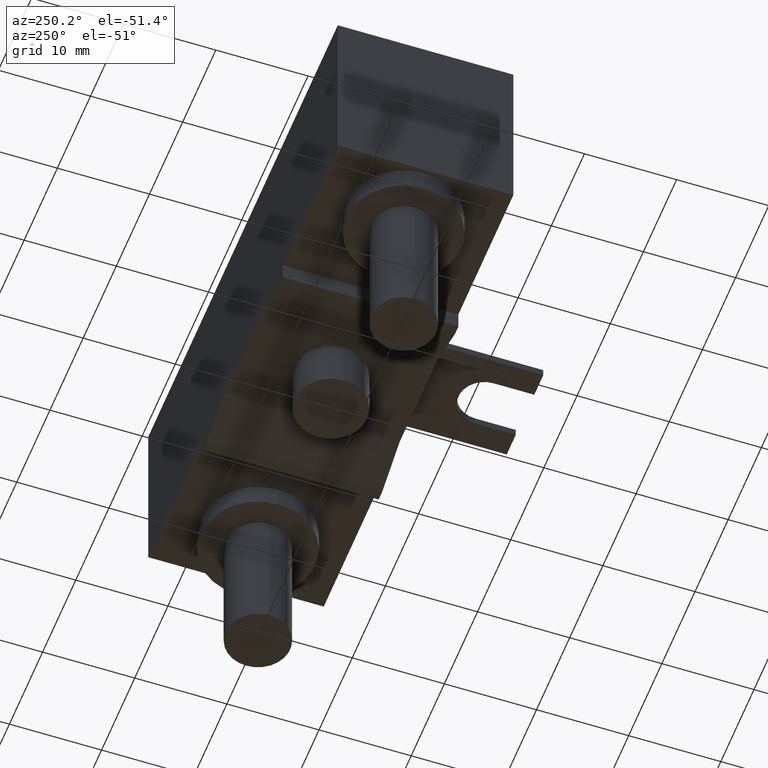
[diagram: clean part render]
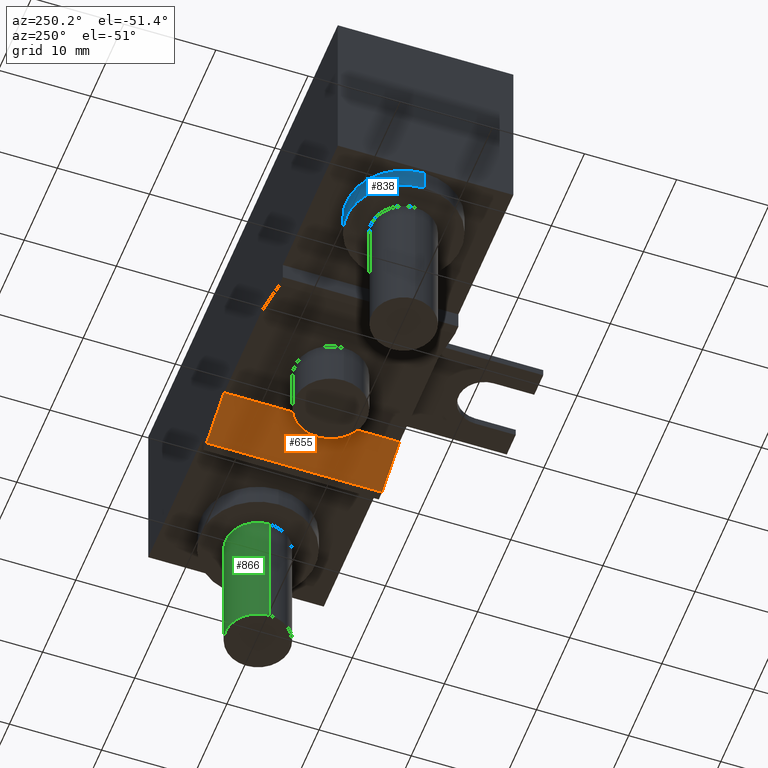
[diagram: same view with three faces highlighted in distinct colors, each labeled with its STEP entity id]
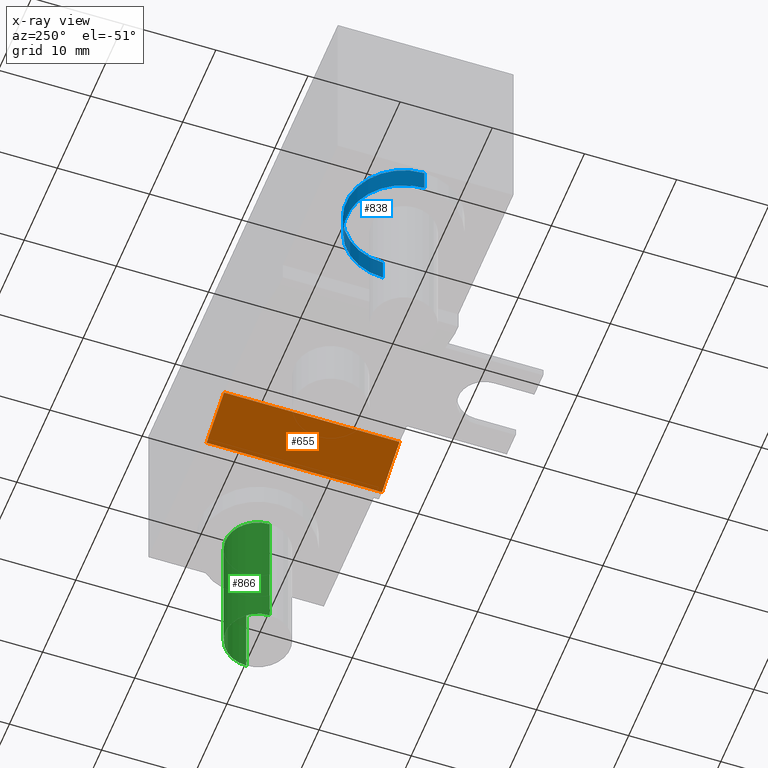
[diagram: x-ray of the same camera — body ghosted, the three highlighted faces saturated]
A machine part, auxiliary view with three faces highlighted in distinct colors.
The next image is the same camera in x-ray (body ghosted, the three faces saturated) — at least one of them is partly hidden behind the body in this view.
Their STEP definitions:

[orange] entity #655 — the highlighted planar face has unit normal (-0.3539, 0, -0.9353).
#25=DIRECTION('',(-9.352704256096E-1,0.E0,3.539339358977E-1));
#26=VECTOR('',#25,5.650772071142E0);
#27=CARTESIAN_POINT('',(1.1E1,0.E0,-1.185E1));
#28=LINE('',#27,#26);
#95=DIRECTION('',(0.E0,1.E0,0.E0));
#96=VECTOR('',#95,1.905E1);
#97=CARTESIAN_POINT('',(5.715E0,0.E0,-9.85E0));
#98=LINE('',#97,#96);
#109=DIRECTION('',(0.E0,1.E0,0.E0));
#110=VECTOR('',#109,1.905E1);
#111=CARTESIAN_POINT('',(1.1E1,0.E0,-1.185E1));
#112=LINE('',#111,#110);
#167=DIRECTION('',(-9.352704256096E-1,0.E0,3.539339358977E-1));
#168=VECTOR('',#167,5.650772071142E0);
#169=CARTESIAN_POINT('',(1.1E1,1.905E1,-1.185E1));
#170=LINE('',#169,#168);
#407=CARTESIAN_POINT('',(1.1E1,0.E0,-1.185E1));
#408=VERTEX_POINT('',#407);
#409=CARTESIAN_POINT('',(5.715E0,0.E0,-9.85E0));
#410=VERTEX_POINT('',#409);
#421=CARTESIAN_POINT('',(1.1E1,1.905E1,-1.185E1));
#422=VERTEX_POINT('',#421);
#423=CARTESIAN_POINT('',(5.715E0,1.905E1,-9.85E0));
#424=VERTEX_POINT('',#423);
#642=CARTESIAN_POINT('',(1.1E1,0.E0,-1.185E1));
#643=DIRECTION('',(-3.539339358977E-1,0.E0,-9.352704256096E-1));
#644=DIRECTION('',(-9.352704256096E-1,0.E0,3.539339358977E-1));
#645=AXIS2_PLACEMENT_3D('',#642,#643,#644);
#646=PLANE('',#645);
#647=ORIENTED_EDGE('',*,*,#520,.F.);
#649=ORIENTED_EDGE('',*,*,#648,.T.);
#651=ORIENTED_EDGE('',*,*,#650,.T.);
#652=ORIENTED_EDGE('',*,*,#628,.F.);
#653=EDGE_LOOP('',(#647,#649,#651,#652));
#654=FACE_OUTER_BOUND('',#653,.F.);
#520=EDGE_CURVE('',#408,#410,#28,.T.);
#628=EDGE_CURVE('',#410,#424,#98,.T.);
#648=EDGE_CURVE('',#408,#422,#112,.T.);
#650=EDGE_CURVE('',#422,#424,#170,.T.);
#655=ADVANCED_FACE('',(#654),#646,.T.);

[blue] entity #838 — the highlighted cylindrical surface (partial cylindrical patch) has radius 6.225 mm, axis along (0, 0, -1).
#78=CARTESIAN_POINT('',(-2.197E1,9.525E0,-9.85E0));
#79=DIRECTION('',(0.E0,0.E0,-1.E0));
#80=DIRECTION('',(-1.E0,0.E0,0.E0));
#81=AXIS2_PLACEMENT_3D('',#78,#79,#80);
#214=CARTESIAN_POINT('',(-2.197E1,9.525E0,-1.23E1));
#215=DIRECTION('',(0.E0,0.E0,-1.E0));
#216=DIRECTION('',(-1.E0,0.E0,0.E0));
#217=AXIS2_PLACEMENT_3D('',#214,#215,#216);
#239=DIRECTION('',(0.E0,0.E0,-1.E0));
#240=VECTOR('',#239,2.45E0);
#241=CARTESIAN_POINT('',(-1.5745E1,9.525E0,-9.85E0));
#242=LINE('',#241,#240);
#243=DIRECTION('',(0.E0,0.E0,-1.E0));
#244=VECTOR('',#243,2.45E0);
#245=CARTESIAN_POINT('',(-2.8195E1,9.525E0,-9.85E0));
#246=LINE('',#245,#244);
#435=CARTESIAN_POINT('',(-1.5745E1,9.525E0,-1.23E1));
#436=CARTESIAN_POINT('',(-2.8195E1,9.525E0,-1.23E1));
#437=VERTEX_POINT('',#435);
#438=VERTEX_POINT('',#436);
#439=CARTESIAN_POINT('',(-1.5745E1,9.525E0,-9.85E0));
#440=CARTESIAN_POINT('',(-2.8195E1,9.525E0,-9.85E0));
#441=VERTEX_POINT('',#439);
#442=VERTEX_POINT('',#440);
#827=CARTESIAN_POINT('',(-2.197E1,9.525E0,-9.85E0));
#828=DIRECTION('',(0.E0,0.E0,-1.E0));
#829=DIRECTION('',(1.E0,0.E0,0.E0));
#830=AXIS2_PLACEMENT_3D('',#827,#828,#829);
#831=CYLINDRICAL_SURFACE('',#830,6.225E0);
#832=ORIENTED_EDGE('',*,*,#575,.F.);
#833=ORIENTED_EDGE('',*,*,#822,.T.);
#834=ORIENTED_EDGE('',*,*,#802,.T.);
#835=ORIENTED_EDGE('',*,*,#819,.F.);
#836=EDGE_LOOP('',(#832,#833,#834,#835));
#837=FACE_OUTER_BOUND('',#836,.F.);
#82=CIRCLE('',#81,6.225E0);
#218=CIRCLE('',#217,6.225E0);
#575=EDGE_CURVE('',#442,#441,#82,.T.);
#802=EDGE_CURVE('',#438,#437,#218,.T.);
#819=EDGE_CURVE('',#441,#437,#242,.T.);
#822=EDGE_CURVE('',#442,#438,#246,.T.);
#838=ADVANCED_FACE('',(#837),#831,.T.);

[green] entity #866 — the highlighted cylindrical surface (edge-blend (fillet) strip) has radius 3.5 mm, axis along (0, 0, -1).
#224=CARTESIAN_POINT('',(2.197E1,9.525E0,-1.23E1));
#225=DIRECTION('',(0.E0,0.E0,-1.E0));
#226=DIRECTION('',(-1.E0,0.E0,0.E0));
#227=AXIS2_PLACEMENT_3D('',#224,#225,#226);
#247=DIRECTION('',(0.E0,0.E0,-1.E0));
#248=VECTOR('',#247,1.493E1);
#249=CARTESIAN_POINT('',(2.547E1,9.525E0,-1.23E1));
#250=LINE('',#249,#248);
#251=DIRECTION('',(0.E0,0.E0,-1.E0));
#252=VECTOR('',#251,1.493E1);
#253=CARTESIAN_POINT('',(1.847E1,9.525E0,-1.23E1));
#254=LINE('',#253,#252);
#260=CARTESIAN_POINT('',(2.197E1,9.525E0,-2.723E1));
#261=DIRECTION('',(0.E0,0.E0,-1.E0));
#262=DIRECTION('',(-1.E0,0.E0,0.E0));
#263=AXIS2_PLACEMENT_3D('',#260,#261,#262);
#447=CARTESIAN_POINT('',(2.547E1,9.525E0,-2.723E1));
#448=CARTESIAN_POINT('',(1.847E1,9.525E0,-2.723E1));
#449=VERTEX_POINT('',#447);
#450=VERTEX_POINT('',#448);
#455=CARTESIAN_POINT('',(2.547E1,9.525E0,-1.23E1));
#456=CARTESIAN_POINT('',(1.847E1,9.525E0,-1.23E1));
#457=VERTEX_POINT('',#455);
#458=VERTEX_POINT('',#456);
#854=CARTESIAN_POINT('',(2.197E1,9.525E0,-1.23E1));
#855=DIRECTION('',(0.E0,0.E0,-1.E0));
#856=DIRECTION('',(1.E0,0.E0,0.E0));
#857=AXIS2_PLACEMENT_3D('',#854,#855,#856);
#858=CYLINDRICAL_SURFACE('',#857,3.5E0);
#859=ORIENTED_EDGE('',*,*,#790,.F.);
#860=ORIENTED_EDGE('',*,*,#849,.T.);
#862=ORIENTED_EDGE('',*,*,#861,.T.);
#863=ORIENTED_EDGE('',*,*,#845,.F.);
#864=EDGE_LOOP('',(#859,#860,#862,#863));
#865=FACE_OUTER_BOUND('',#864,.F.);
#228=CIRCLE('',#227,3.5E0);
#264=CIRCLE('',#263,3.5E0);
#790=EDGE_CURVE('',#458,#457,#228,.T.);
#845=EDGE_CURVE('',#457,#449,#250,.T.);
#849=EDGE_CURVE('',#458,#450,#254,.T.);
#861=EDGE_CURVE('',#450,#449,#264,.T.);
#866=ADVANCED_FACE('',(#865),#858,.T.);